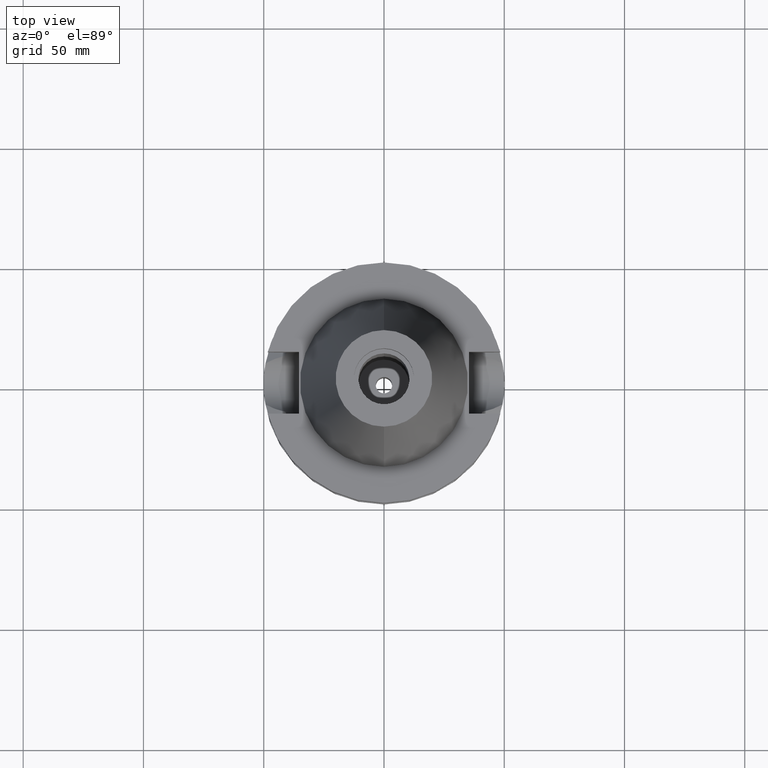
[diagram: clean part render]
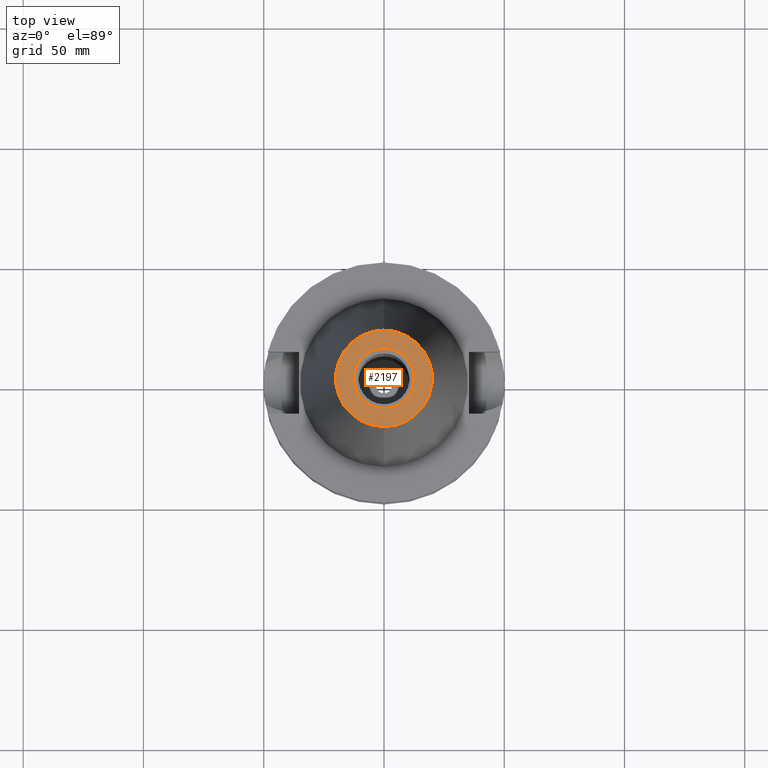
[diagram: same view with one face highlighted and labeled with its STEP entity id]
A machine part, top view. The second image highlights one B-rep face of the part: STEP entity #2197.
In plain terms, the highlighted planar face has unit normal (0, 0, -1).
Its self-contained STEP definition (entity closure, byte-faithful):
#1096=CARTESIAN_POINT('',(0.E0,1.847992019913E-14,1.018E2));
#1097=DIRECTION('',(0.E0,0.E0,-1.E0));
#1098=DIRECTION('',(0.E0,-1.E0,0.E0));
#1099=AXIS2_PLACEMENT_3D('',#1096,#1097,#1098);
#1104=CARTESIAN_POINT('',(0.E0,1.847992019913E-14,1.018E2));
#1105=DIRECTION('',(0.E0,0.E0,-1.E0));
#1106=DIRECTION('',(0.E0,1.E0,0.E0));
#1107=AXIS2_PLACEMENT_3D('',#1104,#1105,#1106);
#1112=CARTESIAN_POINT('',(0.E0,2.636174699845E-14,1.018E2));
#1113=DIRECTION('',(0.E0,0.E0,1.E0));
#1114=DIRECTION('',(0.E0,-1.E0,0.E0));
#1115=AXIS2_PLACEMENT_3D('',#1112,#1113,#1114);
#1120=CARTESIAN_POINT('',(0.E0,2.636174699845E-14,1.018E2));
#1121=DIRECTION('',(0.E0,0.E0,1.E0));
#1122=DIRECTION('',(0.E0,1.E0,0.E0));
#1123=AXIS2_PLACEMENT_3D('',#1120,#1121,#1122);
#1129=CARTESIAN_POINT('',(0.E0,1.25E1,1.018E2));
#1131=VERTEX_POINT('',#1129);
#1132=CARTESIAN_POINT('',(0.E0,-1.25E1,1.018E2));
#1133=VERTEX_POINT('',#1132);
#1289=CARTESIAN_POINT('',(0.E0,2.007942971896E1,1.018E2));
#1290=VERTEX_POINT('',#1289);
#1291=CARTESIAN_POINT('',(0.E0,-2.007942971896E1,1.018E2));
#1292=VERTEX_POINT('',#1291);
#2184=CARTESIAN_POINT('',(0.E0,2.471337240679E-14,1.018E2));
#2185=DIRECTION('',(0.E0,0.E0,-1.E0));
#2186=DIRECTION('',(0.E0,-1.E0,0.E0));
#2187=AXIS2_PLACEMENT_3D('',#2184,#2185,#2186);
#2188=PLANE('',#2187);
#2189=ORIENTED_EDGE('',*,*,#2163,.T.);
#2190=ORIENTED_EDGE('',*,*,#2179,.T.);
#2191=EDGE_LOOP('',(#2189,#2190));
#2192=FACE_OUTER_BOUND('',#2191,.F.);
#2193=ORIENTED_EDGE('',*,*,#1308,.T.);
#2194=ORIENTED_EDGE('',*,*,#1326,.T.);
#2195=EDGE_LOOP('',(#2193,#2194));
#2196=FACE_BOUND('',#2195,.F.);
#1100=CIRCLE('',#1099,2.007942971896E1);
#1108=CIRCLE('',#1107,2.007942971896E1);
#1116=CIRCLE('',#1115,1.25E1);
#1124=CIRCLE('',#1123,1.25E1);
#1308=EDGE_CURVE('',#1133,#1131,#1116,.T.);
#1326=EDGE_CURVE('',#1131,#1133,#1124,.T.);
#2163=EDGE_CURVE('',#1292,#1290,#1100,.T.);
#2179=EDGE_CURVE('',#1290,#1292,#1108,.T.);
#2197=ADVANCED_FACE('',(#2192,#2196),#2188,.F.);